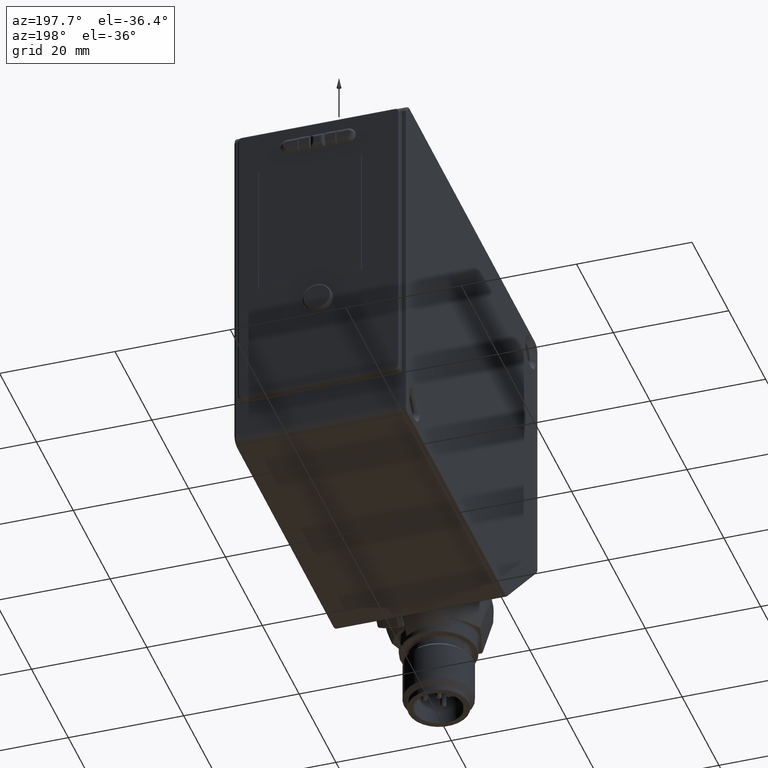
[diagram: clean part render]
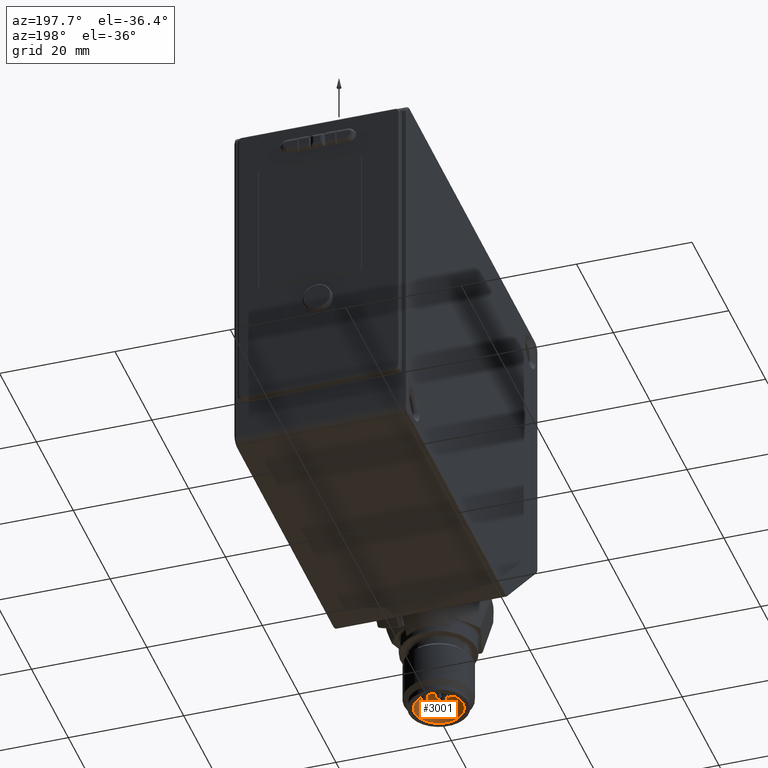
[diagram: same view with one face highlighted and labeled with its STEP entity id]
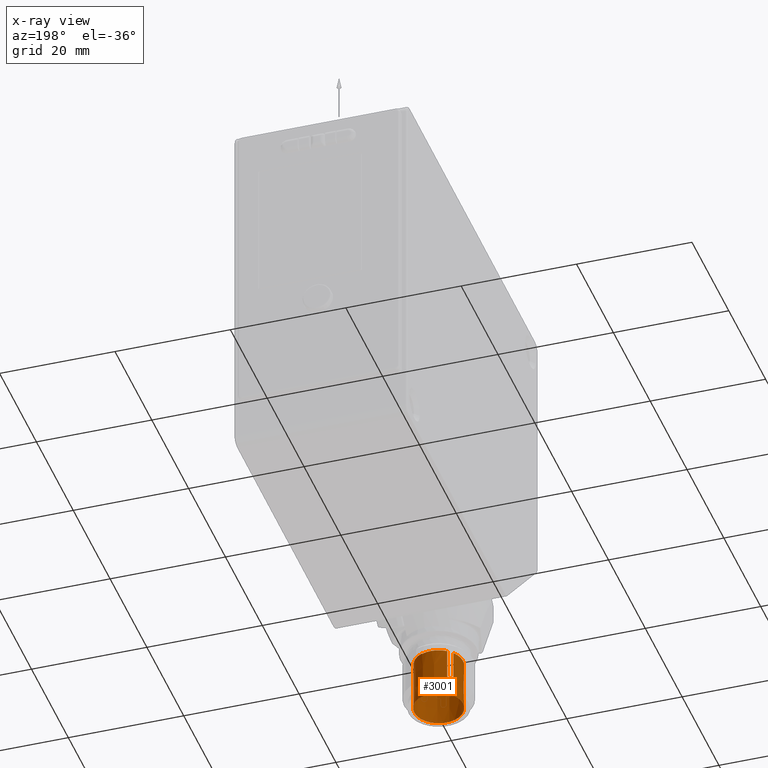
[diagram: x-ray of the same camera — body ghosted, the highlighted face saturated]
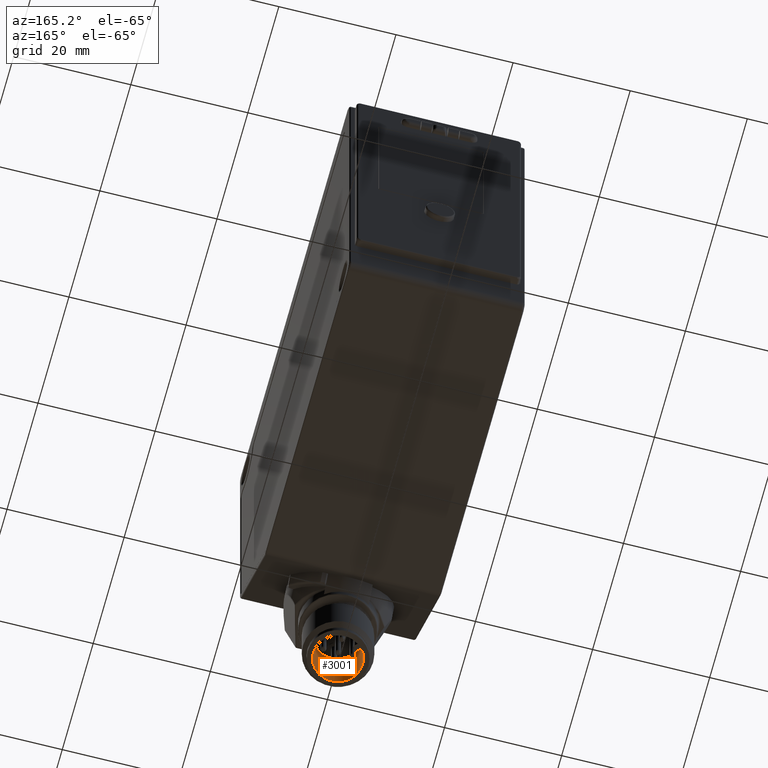
[diagram: same view with one face highlighted and labeled with its STEP entity id]
A machine part, auxiliary view. The second image highlights one B-rep face of the part: STEP entity #3001.
The next image is the same camera in x-ray: the body ghosted, the highlighted face saturated — about 0% of this face is hidden behind the body in this view.
A second angle (auxiliary view) of the same face is appended — the face is thin or edge-on in the first view.
In plain terms, the highlighted conical surface has half-angle 0.1 deg.
Its self-contained STEP definition (entity closure, byte-faithful):
#11 = EDGE_CURVE ( 'NONE', #12754, #6402, #2091, .T. ) ;
#36 = EDGE_CURVE ( 'NONE', #10587, #10787, #997, .T. ) ;
#84 = EDGE_CURVE ( 'NONE', #4508, #12809, #4452, .T. ) ;
#187 = FACE_BOUND ( 'NONE', #6658, .T. ) ;
#376 = ORIENTED_EDGE ( 'NONE', *, *, #36, .F. ) ;
#428 = CARTESIAN_POINT ( 'NONE',  ( 0.06643041087196013827, 0.4214634051060032194, -2.628657473619157248 ) ) ;
#470 = AXIS2_PLACEMENT_3D ( 'NONE', #12916, #956, #9803 ) ;
#524 = CARTESIAN_POINT ( 'NONE',  ( -0.1315808915836290671, 0.3711104774275044149, -2.965781025488837486 ) ) ;
#607 = EDGE_CURVE ( 'NONE', #2778, #3222, #1485, .T. ) ;
#672 = EDGE_CURVE ( 'NONE', #5671, #5671, #11813, .T. ) ;
#722 = EDGE_CURVE ( 'NONE', #3222, #6289, #11817, .T. ) ;
#723 = CARTESIAN_POINT ( 'NONE',  ( 0.1513881934688083852, 0.3364603767260055944, -2.631621731295240796 ) ) ;
#876 = ORIENTED_EDGE ( 'NONE', *, *, #1519, .F. ) ;
#955 = CARTESIAN_POINT ( 'NONE',  ( 0.06638508240871518473, 0.1187551420023954390, -2.630139602457065351 ) ) ;
#956 = DIRECTION ( 'NONE',  ( 0.000000000000000000, 0.000000000000000000, -1.000000000000000000 ) ) ;
#993 = CARTESIAN_POINT ( 'NONE',  ( 0.1513427707949033529, 0.3365510451830523442, -2.628657473619157248 ) ) ;
#997 = B_SPLINE_CURVE_WITH_KNOTS ( 'NONE', 3,
 ( #6141, #11231, #2172, #6201 ),
 .UNSPECIFIED., .F., .F.,
 ( 4, 4 ),
 ( 4.440907535649258819E-15, 0.008450029668114842490 ),
 .UNSPECIFIED. ) ;
#1232 = CIRCLE ( 'NONE', #2064, 0.1652882304074751174 ) ;
#1331 = CARTESIAN_POINT ( 'NONE',  ( -0.06633974241490160628, 0.1187324408422966993, -2.631621731295240796 ) ) ;
#1338 = ORIENTED_EDGE ( 'NONE', *, *, #9177, .F. ) ;
#1470 = CARTESIAN_POINT ( 'NONE',  ( -0.06643041087195539207, 0.1187778635162054230, -2.628657473619157248 ) ) ;
#1485 = CIRCLE ( 'NONE', #6112, 0.1652804699911466779 ) ;
#1519 = EDGE_CURVE ( 'NONE', #3238, #7834, #11453, .T. ) ;
#1524 = DIRECTION ( 'NONE',  ( -1.000000000000000000, 0.000000000000000000, 0.000000000000000000 ) ) ;
#1583 = DIRECTION ( 'NONE',  ( 0.000000000000000000, 0.000000000000000000, -1.000000000000000000 ) ) ;
#1850 = CARTESIAN_POINT ( 'NONE',  ( 0.1513654923087093263, 0.3365057167198212129, -2.630139602457065351 ) ) ;
#2064 = AXIS2_PLACEMENT_3D ( 'NONE', #2520, #1583, #1524 ) ;
#2091 = B_SPLINE_CURVE_WITH_KNOTS ( 'NONE', 3,
 ( #993, #1850, #723, #4745 ),
 .UNSPECIFIED., .F., .F.,
 ( 4, 4 ),
 ( 0.000000000000000000, 1.000000000000000000 ),
 .UNSPECIFIED. ) ;
#2172 = CARTESIAN_POINT ( 'NONE',  ( -0.1004037439329313469, 0.4016628516033611818, -2.743996247691458557 ) ) ;
#2252 = DIRECTION ( 'NONE',  ( 0.000000000000000000, 0.000000000000000000, -1.000000000000000000 ) ) ;
#2292 = CIRCLE ( 'NONE', #3987, 0.1652882304074751174 ) ;
#2313 = CARTESIAN_POINT ( 'NONE',  ( -4.001283067063857293E-16, 0.2701206343111052788, -2.979560553042370774 ) ) ;
#2399 = VERTEX_POINT ( 'NONE', #7572 ) ;
#2445 = CARTESIAN_POINT ( 'NONE',  ( 0.06629439090872583928, 0.4215315085747325385, -2.633103860133148899 ) ) ;
#2451 = CIRCLE ( 'NONE', #3500, 0.1652882304074751174 ) ;
#2492 = CARTESIAN_POINT ( 'NONE',  ( 0.06629439090872583928, 0.4215315085747325385, -2.633103860133148899 ) ) ;
#2520 = CARTESIAN_POINT ( 'NONE',  ( -4.001283067063857293E-16, 0.2701206343111052788, -2.633103860133148899 ) ) ;
#2706 = AXIS2_PLACEMENT_3D ( 'NONE', #2313, #4340, #8372 ) ;
#2778 = VERTEX_POINT ( 'NONE', #8411 ) ;
#2795 = VERTEX_POINT ( 'NONE', #3042 ) ;
#2917 = DIRECTION ( 'NONE',  ( 0.000000000000000000, 0.000000000000000000, -1.000000000000000000 ) ) ;
#2936 = ORIENTED_EDGE ( 'NONE', *, *, #2949, .F. ) ;
#2949 = EDGE_CURVE ( 'NONE', #2399, #10323, #9885, .T. ) ;
#2998 = DIRECTION ( 'NONE',  ( -1.000000000000000000, 0.000000000000000000, 0.000000000000000000 ) ) ;
#3001 = ADVANCED_FACE ( 'NONE', ( #9238, #187 ), #7975, .F. ) ;
#3042 = CARTESIAN_POINT ( 'NONE',  ( -0.06629439090878899710, 0.1187097600475064962, -2.633103860133148899 ) ) ;
#3168 = DIRECTION ( 'NONE',  ( 0.000000000000000000, 0.000000000000000000, -1.000000000000000000 ) ) ;
#3202 = DIRECTION ( 'NONE',  ( -0.000000000000000000, -0.000000000000000000, 1.000000000000000000 ) ) ;
#3222 = VERTEX_POINT ( 'NONE', #3877 ) ;
#3238 = VERTEX_POINT ( 'NONE', #5784 ) ;
#3302 = DIRECTION ( 'NONE',  ( -1.000000000000000000, 0.000000000000000000, 0.000000000000000000 ) ) ;
#3337 = AXIS2_PLACEMENT_3D ( 'NONE', #3366, #3168, #6197 ) ;
#3366 = CARTESIAN_POINT ( 'NONE',  ( -4.001283067063857293E-16, 0.2701206343111052788, -2.628657473619157248 ) ) ;
#3500 = AXIS2_PLACEMENT_3D ( 'NONE', #7269, #2252, #3302 ) ;
#3588 = EDGE_CURVE ( 'NONE', #10323, #3238, #12712, .T. ) ;
#3627 = DIRECTION ( 'NONE',  ( 0.000000000000000000, 0.000000000000000000, -1.000000000000000000 ) ) ;
#3776 = CARTESIAN_POINT ( 'NONE',  ( -4.001283067063857293E-16, 0.2701206343111052788, -2.628657473619157248 ) ) ;
#3828 = CARTESIAN_POINT ( 'NONE',  ( -0.1513427707948966361, 0.2036902234391405886, -2.628657473619157248 ) ) ;
#3877 = CARTESIAN_POINT ( 'NONE',  ( 0.06643041087195405980, 0.1187778635162047430, -2.628657473619157248 ) ) ;
#3972 = ORIENTED_EDGE ( 'NONE', *, *, #722, .F. ) ;
#3987 = AXIS2_PLACEMENT_3D ( 'NONE', #6733, #3627, #12807 ) ;
#4072 = EDGE_CURVE ( 'NONE', #2795, #2399, #7121, .T. ) ;
#4115 = AXIS2_PLACEMENT_3D ( 'NONE', #11960, #2917, #4952 ) ;
#4123 = CARTESIAN_POINT ( 'NONE',  ( 0.06629439090878798402, 0.1187097600475052889, -2.633103860133148899 ) ) ;
#4340 = DIRECTION ( 'NONE',  ( 0.000000000000000000, 0.000000000000000000, -1.000000000000000000 ) ) ;
#4416 = CARTESIAN_POINT ( 'NONE',  ( 0.06633974241490024626, 0.4215088277799140526, -2.631621731295240796 ) ) ;
#4430 = CARTESIAN_POINT ( 'NONE',  ( -0.06629439090878899710, 0.1187097600475064962, -2.633103860133148899 ) ) ;
#4452 = B_SPLINE_CURVE_WITH_KNOTS ( 'NONE', 3,
 ( #2445, #4416, #4661, #5472 ),
 .UNSPECIFIED., .F., .F.,
 ( 4, 4 ),
 ( 0.000000000000000000, 1.000000000000000000 ),
 .UNSPECIFIED. ) ;
#4490 = EDGE_CURVE ( 'NONE', #8952, #10587, #10235, .T. ) ;
#4508 = VERTEX_POINT ( 'NONE', #2492 ) ;
#4636 = ORIENTED_EDGE ( 'NONE', *, *, #9862, .F. ) ;
#4661 = CARTESIAN_POINT ( 'NONE',  ( 0.06638508240871546229, 0.4214861266198151601, -2.630139602457065351 ) ) ;
#4728 = ORIENTED_EDGE ( 'NONE', *, *, #4072, .F. ) ;
#4745 = CARTESIAN_POINT ( 'NONE',  ( 0.1514108742636328664, 0.3364150252198178093, -2.633103860133148899 ) ) ;
#4927 = CARTESIAN_POINT ( 'NONE',  ( 0.1514108742635911498, 0.2038262434023001557, -2.633103860133148899 ) ) ;
#4952 = DIRECTION ( 'NONE',  ( -1.000000000000000000, 0.000000000000000000, 0.000000000000000000 ) ) ;
#5054 = CARTESIAN_POINT ( 'NONE',  ( -0.1513881934688109110, 0.2037808918962080718, -2.631621731295240796 ) ) ;
#5472 = CARTESIAN_POINT ( 'NONE',  ( 0.06643041087196013827, 0.4214634051060032194, -2.628657473619157248 ) ) ;
#5645 = DIRECTION ( 'NONE',  ( 0.000000000000000000, 0.000000000000000000, -1.000000000000000000 ) ) ;
#5671 = VERTEX_POINT ( 'NONE', #9704 ) ;
#5707 = EDGE_CURVE ( 'NONE', #10787, #4508, #2451, .T. ) ;
#5716 = CARTESIAN_POINT ( 'NONE',  ( 0.1514108742635911498, 0.2038262434023001557, -2.633103860133148899 ) ) ;
#5749 = CARTESIAN_POINT ( 'NONE',  ( -0.1315617114664820730, 0.3708175848632269678, -2.854888636148609660 ) ) ;
#5784 = CARTESIAN_POINT ( 'NONE',  ( -0.1514108742635929261, 0.2038262434022994063, -2.633103860133148899 ) ) ;
#5917 = ORIENTED_EDGE ( 'NONE', *, *, #672, .F. ) ;
#6086 = ORIENTED_EDGE ( 'NONE', *, *, #11, .F. ) ;
#6112 = AXIS2_PLACEMENT_3D ( 'NONE', #9886, #5645, #6906 ) ;
#6141 = CARTESIAN_POINT ( 'NONE',  ( -0.1009898431163921001, 0.4017015258947396750, -2.965781025488837486 ) ) ;
#6179 = B_SPLINE_CURVE_WITH_KNOTS ( 'NONE', 3,
 ( #12044, #11902, #5749, #9781 ),
 .UNSPECIFIED., .F., .F.,
 ( 4, 4 ),
 ( 3.344558136692058520E-15, 0.008450029668115938836 ),
 .UNSPECIFIED. ) ;
#6197 = DIRECTION ( 'NONE',  ( -1.000000000000000000, 0.000000000000000000, 0.000000000000000000 ) ) ;
#6201 = CARTESIAN_POINT ( 'NONE',  ( -0.1001102194275972079, 0.4016430395407583620, -2.633103860133280794 ) ) ;
#6289 = VERTEX_POINT ( 'NONE', #6899 ) ;
#6402 = VERTEX_POINT ( 'NONE', #12367 ) ;
#6658 = EDGE_LOOP ( 'NONE', ( #2936, #4728, #10377, #3972, #12331, #7514, #1338, #6086, #4636, #11452, #6822, #376, #8199, #12976, #876, #11088 ) ) ;
#6733 = CARTESIAN_POINT ( 'NONE',  ( -4.001283067063857293E-16, 0.2701206343111052788, -2.633103860133148899 ) ) ;
#6822 = ORIENTED_EDGE ( 'NONE', *, *, #5707, .F. ) ;
#6899 = CARTESIAN_POINT ( 'NONE',  ( 0.06629439090878798402, 0.1187097600475052889, -2.633103860133148899 ) ) ;
#6906 = DIRECTION ( 'NONE',  ( -1.000000000000000000, 0.000000000000000000, 0.000000000000000000 ) ) ;
#7121 = B_SPLINE_CURVE_WITH_KNOTS ( 'NONE', 3,
 ( #4430, #1331, #7541, #1470 ),
 .UNSPECIFIED., .F., .F.,
 ( 4, 4 ),
 ( 0.000000000000000000, 1.000000000000000000 ),
 .UNSPECIFIED. ) ;
#7201 = EDGE_CURVE ( 'NONE', #9585, #2778, #11281, .T. ) ;
#7229 = CARTESIAN_POINT ( 'NONE',  ( -0.1513427707948966361, 0.2036902234391405886, -2.628657473619157248 ) ) ;
#7233 = DIRECTION ( 'NONE',  ( -1.000000000000000000, 0.000000000000000000, 0.000000000000000000 ) ) ;
#7269 = CARTESIAN_POINT ( 'NONE',  ( -4.001283067063857293E-16, 0.2701206343111052788, -2.633103860133148899 ) ) ;
#7514 = ORIENTED_EDGE ( 'NONE', *, *, #7201, .F. ) ;
#7541 = CARTESIAN_POINT ( 'NONE',  ( -0.06638508240871708599, 0.1187551420023957166, -2.630139602457065351 ) ) ;
#7572 = CARTESIAN_POINT ( 'NONE',  ( -0.06643041087195539207, 0.1187778635162054230, -2.628657473619157248 ) ) ;
#7801 = AXIS2_PLACEMENT_3D ( 'NONE', #12063, #3202, #7233 ) ;
#7834 = VERTEX_POINT ( 'NONE', #8847 ) ;
#7975 = CONICAL_SURFACE ( 'NONE', #2706, 0.1658929120221521447, 0.001745329252007885154 ) ;
#8009 = DIRECTION ( 'NONE',  ( 0.000000000000000000, 0.000000000000000000, -1.000000000000000000 ) ) ;
#8038 = CARTESIAN_POINT ( 'NONE',  ( -0.1001102194275972079, 0.4016430395407583620, -2.633103860133280794 ) ) ;
#8199 = ORIENTED_EDGE ( 'NONE', *, *, #4490, .F. ) ;
#8372 = DIRECTION ( 'NONE',  ( -1.000000000000000000, 0.000000000000000000, 0.000000000000000000 ) ) ;
#8411 = CARTESIAN_POINT ( 'NONE',  ( 0.1513427707948925283, 0.2036902234391335942, -2.628657473619157248 ) ) ;
#8829 = CARTESIAN_POINT ( 'NONE',  ( -0.1009898431163921001, 0.4017015258947396750, -2.965781025488837486 ) ) ;
#8847 = CARTESIAN_POINT ( 'NONE',  ( -0.1315224052296482815, 0.3702308537387088982, -2.633103860133280794 ) ) ;
#8952 = VERTEX_POINT ( 'NONE', #524 ) ;
#8956 = CARTESIAN_POINT ( 'NONE',  ( 0.1513654923087091597, 0.2037355519023892614, -2.630139602457065351 ) ) ;
#8969 = EDGE_CURVE ( 'NONE', #6289, #2795, #1232, .T. ) ;
#9177 = EDGE_CURVE ( 'NONE', #6402, #9585, #2292, .T. ) ;
#9238 = FACE_OUTER_BOUND ( 'NONE', #12442, .T. ) ;
#9252 = CIRCLE ( 'NONE', #12002, 0.1652804699911466779 ) ;
#9275 = CARTESIAN_POINT ( 'NONE',  ( 0.06633974241489969115, 0.1187324408422964217, -2.631621731295240796 ) ) ;
#9585 = VERTEX_POINT ( 'NONE', #4927 ) ;
#9704 = CARTESIAN_POINT ( 'NONE',  ( -0.1658929120221603881, 0.2701206343111052788, -2.979560553046846305 ) ) ;
#9748 = CARTESIAN_POINT ( 'NONE',  ( 0.1513427707948925283, 0.2036902234391335942, -2.628657473619157248 ) ) ;
#9781 = CARTESIAN_POINT ( 'NONE',  ( -0.1315808915836290671, 0.3711104774275044149, -2.965781025488837486 ) ) ;
#9803 = DIRECTION ( 'NONE',  ( -1.000000000000000000, 0.000000000000000000, 0.000000000000000000 ) ) ;
#9848 = EDGE_CURVE ( 'NONE', #7834, #8952, #6179, .T. ) ;
#9862 = EDGE_CURVE ( 'NONE', #12809, #12754, #9252, .T. ) ;
#9885 = CIRCLE ( 'NONE', #3337, 0.1652804699911466779 ) ;
#9886 = CARTESIAN_POINT ( 'NONE',  ( -4.001283067063857293E-16, 0.2701206343111052788, -2.628657473619157248 ) ) ;
#10235 = CIRCLE ( 'NONE', #4115, 0.1658688621852144329 ) ;
#10323 = VERTEX_POINT ( 'NONE', #3828 ) ;
#10377 = ORIENTED_EDGE ( 'NONE', *, *, #8969, .F. ) ;
#10587 = VERTEX_POINT ( 'NONE', #8829 ) ;
#10746 = CARTESIAN_POINT ( 'NONE',  ( 0.1513881934688081632, 0.2037808918962047133, -2.631621731295240796 ) ) ;
#10787 = VERTEX_POINT ( 'NONE', #8038 ) ;
#11088 = ORIENTED_EDGE ( 'NONE', *, *, #3588, .F. ) ;
#11231 = CARTESIAN_POINT ( 'NONE',  ( -0.1006969505521146668, 0.4016823457775925976, -2.854888636148610548 ) ) ;
#11281 = B_SPLINE_CURVE_WITH_KNOTS ( 'NONE', 3,
 ( #5716, #10746, #8956, #9748 ),
 .UNSPECIFIED., .F., .F.,
 ( 4, 4 ),
 ( 0.000000000000000000, 1.000000000000000000 ),
 .UNSPECIFIED. ) ;
#11329 = CARTESIAN_POINT ( 'NONE',  ( -0.1513654923087140447, 0.2037355519023974770, -2.630139602457065351 ) ) ;
#11452 = ORIENTED_EDGE ( 'NONE', *, *, #84, .F. ) ;
#11453 = CIRCLE ( 'NONE', #470, 0.1652882304074751174 ) ;
#11813 = CIRCLE ( 'NONE', #7801, 0.1658929120221599718 ) ;
#11817 = B_SPLINE_CURVE_WITH_KNOTS ( 'NONE', 3,
 ( #13062, #955, #9275, #4123 ),
 .UNSPECIFIED., .F., .F.,
 ( 4, 4 ),
 ( 0.000000000000000000, 1.000000000000000000 ),
 .UNSPECIFIED. ) ;
#11902 = CARTESIAN_POINT ( 'NONE',  ( -0.1315422172922506294, 0.3705243782440435507, -2.743996247691458112 ) ) ;
#11960 = CARTESIAN_POINT ( 'NONE',  ( -4.001283067063857293E-16, 0.2701206343111052788, -2.965781025489012457 ) ) ;
#12002 = AXIS2_PLACEMENT_3D ( 'NONE', #3776, #8009, #2998 ) ;
#12044 = CARTESIAN_POINT ( 'NONE',  ( -0.1315224052296482815, 0.3702308537387088982, -2.633103860133280794 ) ) ;
#12063 = CARTESIAN_POINT ( 'NONE',  ( -4.001283067063857293E-16, 0.2701206343111052788, -2.979560553046846305 ) ) ;
#12188 = CARTESIAN_POINT ( 'NONE',  ( -0.1514108742635929261, 0.2038262434022994063, -2.633103860133148899 ) ) ;
#12331 = ORIENTED_EDGE ( 'NONE', *, *, #607, .F. ) ;
#12367 = CARTESIAN_POINT ( 'NONE',  ( 0.1514108742636328664, 0.3364150252198178093, -2.633103860133148899 ) ) ;
#12442 = EDGE_LOOP ( 'NONE', ( #5917 ) ) ;
#12703 = CARTESIAN_POINT ( 'NONE',  ( 0.1513427707949033529, 0.3365510451830523442, -2.628657473619157248 ) ) ;
#12712 = B_SPLINE_CURVE_WITH_KNOTS ( 'NONE', 3,
 ( #7229, #11329, #5054, #12188 ),
 .UNSPECIFIED., .F., .F.,
 ( 4, 4 ),
 ( 0.000000000000000000, 1.000000000000000000 ),
 .UNSPECIFIED. ) ;
#12754 = VERTEX_POINT ( 'NONE', #12703 ) ;
#12807 = DIRECTION ( 'NONE',  ( -1.000000000000000000, 0.000000000000000000, 0.000000000000000000 ) ) ;
#12809 = VERTEX_POINT ( 'NONE', #428 ) ;
#12916 = CARTESIAN_POINT ( 'NONE',  ( -4.001283067063857293E-16, 0.2701206343111052788, -2.633103860133148899 ) ) ;
#12976 = ORIENTED_EDGE ( 'NONE', *, *, #9848, .F. ) ;
#13062 = CARTESIAN_POINT ( 'NONE',  ( 0.06643041087195405980, 0.1187778635162047430, -2.628657473619157248 ) ) ;